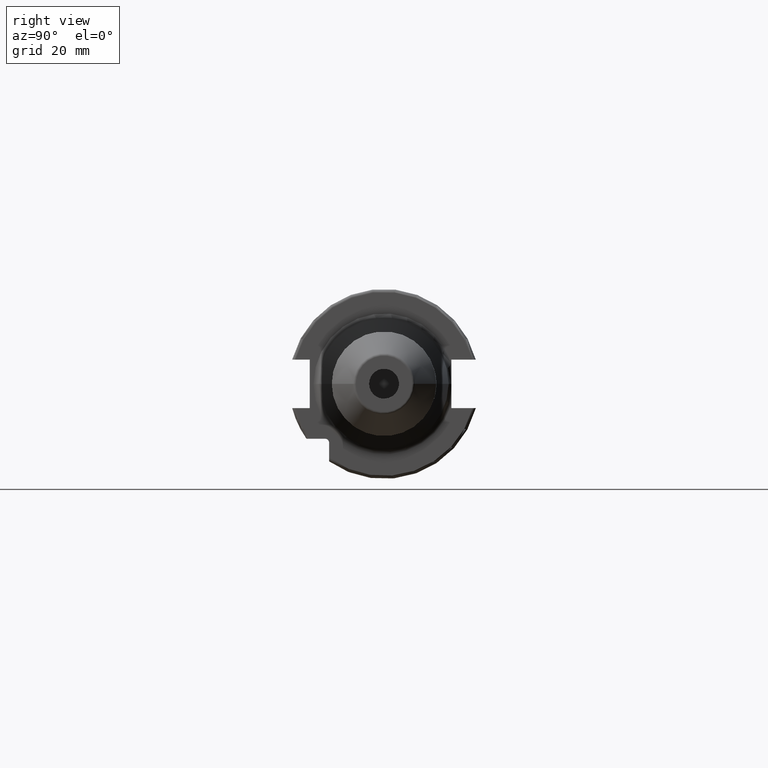
[diagram: clean part render]
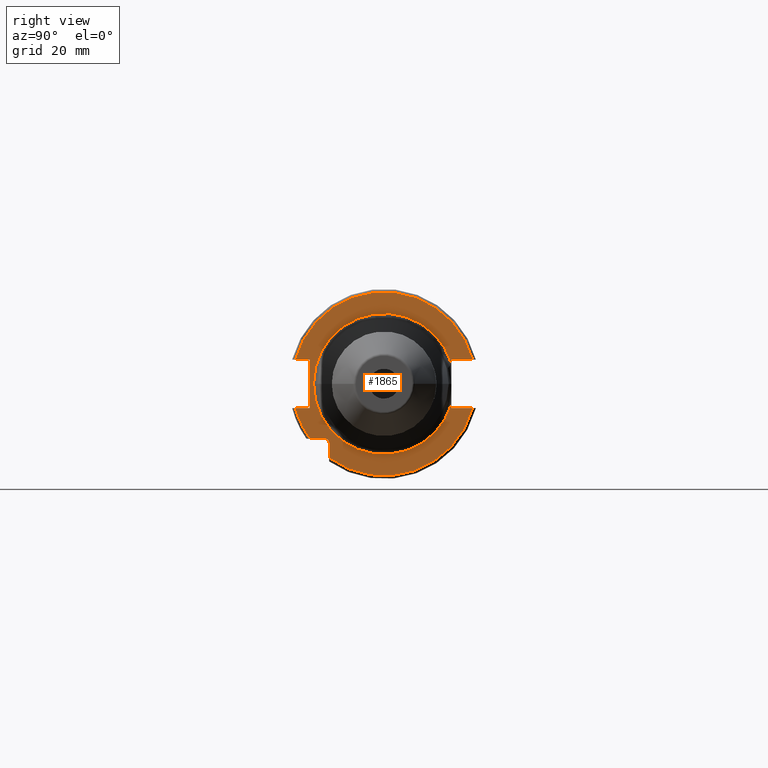
[diagram: same view with one face highlighted and labeled with its STEP entity id]
A machine part, right view. The second image highlights one B-rep face of the part: STEP entity #1865.
In plain terms, the highlighted planar face has unit normal (1, 0, 0).
Its self-contained STEP definition (entity closure, byte-faithful):
#126=CARTESIAN_POINT('',(1.905E1,0.E0,0.E0));
#127=DIRECTION('',(1.E0,0.E0,0.E0));
#128=DIRECTION('',(0.E0,-1.E0,0.E0));
#129=AXIS2_PLACEMENT_3D('',#126,#127,#128);
#131=DIRECTION('',(0.E0,-1.060980925126E-5,-9.999999999437E-1));
#132=VECTOR('',#131,1.277371841936E0);
#133=CARTESIAN_POINT('',(1.905E1,2.255001355267E1,-6.822628158136E0));
#134=LINE('',#133,#132);
#135=DIRECTION('',(0.E0,-1.E0,0.E0));
#136=VECTOR('',#135,7.126950757280E0);
#137=CARTESIAN_POINT('',(1.905E1,2.967695075728E1,-8.1E0));
#138=LINE('',#137,#136);
#139=DIRECTION('',(0.E0,0.E0,1.E0));
#140=VECTOR('',#139,4.990259339464E0);
#141=CARTESIAN_POINT('',(1.905E1,-1.835E1,-2.469025933946E1));
#142=LINE('',#141,#140);
#143=DIRECTION('',(0.E0,-1.E0,0.E0));
#144=VECTOR('',#143,4.990259339464E0);
#145=CARTESIAN_POINT('',(1.905E1,-1.97E1,-1.835E1));
#146=LINE('',#145,#144);
#147=DIRECTION('',(0.E0,1.E0,0.E0));
#148=VECTOR('',#147,4.826950757280E0);
#149=CARTESIAN_POINT('',(1.905E1,-2.967695075728E1,-8.1E0));
#150=LINE('',#149,#148);
#151=DIRECTION('',(0.E0,0.E0,1.E0));
#152=VECTOR('',#151,1.62E1);
#153=CARTESIAN_POINT('',(1.905E1,-2.485E1,-8.1E0));
#154=LINE('',#153,#152);
#155=DIRECTION('',(0.E0,1.E0,0.E0));
#156=VECTOR('',#155,4.826950757280E0);
#157=CARTESIAN_POINT('',(1.905E1,-2.967695075728E1,8.1E0));
#158=LINE('',#157,#156);
#159=DIRECTION('',(0.E0,-1.E0,0.E0));
#160=VECTOR('',#159,7.126950757280E0);
#161=CARTESIAN_POINT('',(1.905E1,2.967695075728E1,8.1E0));
#162=LINE('',#161,#160);
#163=DIRECTION('',(0.E0,9.573213130103E-6,-9.999999999542E-1));
#164=VECTOR('',#163,1.277343238011E0);
#165=CARTESIAN_POINT('',(1.905E1,2.255E1,8.1E0));
#166=LINE('',#165,#164);
#167=CARTESIAN_POINT('',(1.905E1,0.E0,0.E0));
#168=DIRECTION('',(1.E0,0.E0,0.E0));
#169=DIRECTION('',(0.E0,9.571547360252E-1,2.895769523020E-1));
#170=AXIS2_PLACEMENT_3D('',#167,#168,#169);
#172=CARTESIAN_POINT('',(1.905E1,2.255001355267E1,-6.822628158136E0));
#749=CARTESIAN_POINT('',(1.905E1,-1.97E1,-1.97E1));
#750=DIRECTION('',(-1.E0,0.E0,0.E0));
#751=DIRECTION('',(0.E0,0.E0,1.E0));
#752=AXIS2_PLACEMENT_3D('',#749,#750,#751);
#785=CARTESIAN_POINT('',(1.905E1,0.E0,0.E0));
#786=DIRECTION('',(-1.E0,0.E0,0.E0));
#787=DIRECTION('',(0.E0,9.647119303464E-1,-2.633075985372E-1));
#788=AXIS2_PLACEMENT_3D('',#785,#786,#787);
#801=CARTESIAN_POINT('',(1.905E1,0.E0,0.E0));
#802=DIRECTION('',(-1.E0,0.E0,0.E0));
#803=DIRECTION('',(0.E0,-8.026089992512E-1,-5.965054855750E-1));
#804=AXIS2_PLACEMENT_3D('',#801,#802,#803);
#1164=CARTESIAN_POINT('',(1.905E1,0.E0,0.E0));
#1165=DIRECTION('',(1.E0,0.E0,0.E0));
#1166=DIRECTION('',(0.E0,9.647119303464E-1,2.633075985372E-1));
#1167=AXIS2_PLACEMENT_3D('',#1164,#1165,#1166);
#1524=CARTESIAN_POINT('',(1.905E1,2.967695075728E1,8.1E0));
#1525=CARTESIAN_POINT('',(1.905E1,2.255E1,8.1E0));
#1526=VERTEX_POINT('',#1524);
#1527=VERTEX_POINT('',#1525);
#1528=CARTESIAN_POINT('',(1.905E1,2.967695075728E1,-8.1E0));
#1529=CARTESIAN_POINT('',(1.905E1,2.255E1,-8.1E0));
#1530=VERTEX_POINT('',#1528);
#1531=VERTEX_POINT('',#1529);
#1532=CARTESIAN_POINT('',(1.905E1,-2.967695075728E1,-8.1E0));
#1533=CARTESIAN_POINT('',(1.905E1,-2.485E1,-8.1E0));
#1534=VERTEX_POINT('',#1532);
#1535=VERTEX_POINT('',#1533);
#1536=CARTESIAN_POINT('',(1.905E1,-2.485E1,8.1E0));
#1537=VERTEX_POINT('',#1536);
#1538=CARTESIAN_POINT('',(1.905E1,-2.967695075728E1,8.1E0));
#1539=VERTEX_POINT('',#1538);
#1585=CARTESIAN_POINT('',(1.905E1,-1.835E1,-2.469025933946E1));
#1586=VERTEX_POINT('',#1585);
#1593=CARTESIAN_POINT('',(1.905E1,-1.97E1,-1.835E1));
#1594=CARTESIAN_POINT('',(1.905E1,-2.469025933946E1,-1.835E1));
#1595=VERTEX_POINT('',#1593);
#1596=VERTEX_POINT('',#1594);
#1597=CARTESIAN_POINT('',(1.905E1,-1.835E1,-1.97E1));
#1598=VERTEX_POINT('',#1597);
#1642=VERTEX_POINT('',#172);
#1650=CARTESIAN_POINT('',(1.905E1,-2.355959818596E1,9.599457770347E-14));
#1651=VERTEX_POINT('',#1650);
#1654=CARTESIAN_POINT('',(1.905E1,2.255018098255E1,6.822316640153E0));
#1655=VERTEX_POINT('',#1654);
#1830=CARTESIAN_POINT('',(1.905E1,0.E0,0.E0));
#1831=DIRECTION('',(1.E0,0.E0,0.E0));
#1832=DIRECTION('',(0.E0,-1.E0,0.E0));
#1833=AXIS2_PLACEMENT_3D('',#1830,#1831,#1832);
#1834=PLANE('',#1833);
#1836=ORIENTED_EDGE('',*,*,#1835,.T.);
#1837=ORIENTED_EDGE('',*,*,#1808,.T.);
#1839=ORIENTED_EDGE('',*,*,#1838,.F.);
#1841=ORIENTED_EDGE('',*,*,#1840,.T.);
#1843=ORIENTED_EDGE('',*,*,#1842,.T.);
#1845=ORIENTED_EDGE('',*,*,#1844,.F.);
#1847=ORIENTED_EDGE('',*,*,#1846,.T.);
#1849=ORIENTED_EDGE('',*,*,#1848,.T.);
#1851=ORIENTED_EDGE('',*,*,#1850,.T.);
#1853=ORIENTED_EDGE('',*,*,#1852,.T.);
#1855=ORIENTED_EDGE('',*,*,#1854,.F.);
#1857=ORIENTED_EDGE('',*,*,#1856,.F.);
#1859=ORIENTED_EDGE('',*,*,#1858,.T.);
#1860=ORIENTED_EDGE('',*,*,#1814,.T.);
#1862=ORIENTED_EDGE('',*,*,#1861,.T.);
#1863=EDGE_LOOP('',(#1836,#1837,#1839,#1841,#1843,#1845,#1847,#1849,#1851,#1853,
#1855,#1857,#1859,#1860,#1862));
#1864=FACE_OUTER_BOUND('',#1863,.F.);
#1865=ADVANCED_FACE('',(#1864),#1834,.T.);
#130=CIRCLE('',#129,2.355959818596E1);
#171=CIRCLE('',#170,2.355959818596E1);
#753=CIRCLE('',#752,1.35E0);
#789=CIRCLE('',#788,3.07625E1);
#805=CIRCLE('',#804,3.07625E1);
#1168=CIRCLE('',#1167,3.07625E1);
#1808=EDGE_CURVE('',#1642,#1531,#134,.T.);
#1814=EDGE_CURVE('',#1527,#1655,#166,.T.);
#1835=EDGE_CURVE('',#1651,#1642,#130,.T.);
#1838=EDGE_CURVE('',#1530,#1531,#138,.T.);
#1840=EDGE_CURVE('',#1530,#1586,#789,.T.);
#1842=EDGE_CURVE('',#1586,#1598,#142,.T.);
#1844=EDGE_CURVE('',#1595,#1598,#753,.T.);
#1846=EDGE_CURVE('',#1595,#1596,#146,.T.);
#1848=EDGE_CURVE('',#1596,#1534,#805,.T.);
#1850=EDGE_CURVE('',#1534,#1535,#150,.T.);
#1852=EDGE_CURVE('',#1535,#1537,#154,.T.);
#1854=EDGE_CURVE('',#1539,#1537,#158,.T.);
#1856=EDGE_CURVE('',#1526,#1539,#1168,.T.);
#1858=EDGE_CURVE('',#1526,#1527,#162,.T.);
#1861=EDGE_CURVE('',#1655,#1651,#171,.T.);